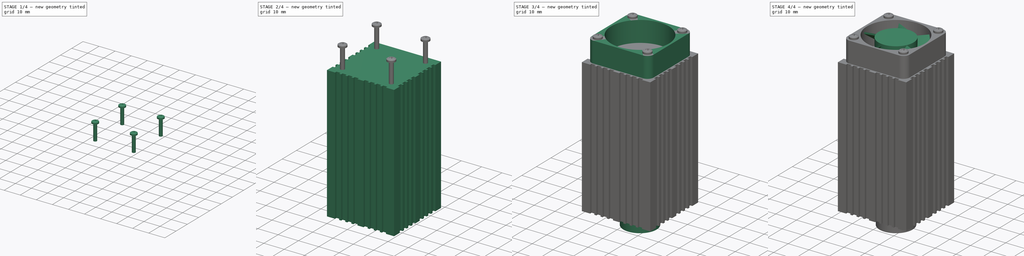
[diagram: build sequence overview — one tinted view per stage of 4, left to right]
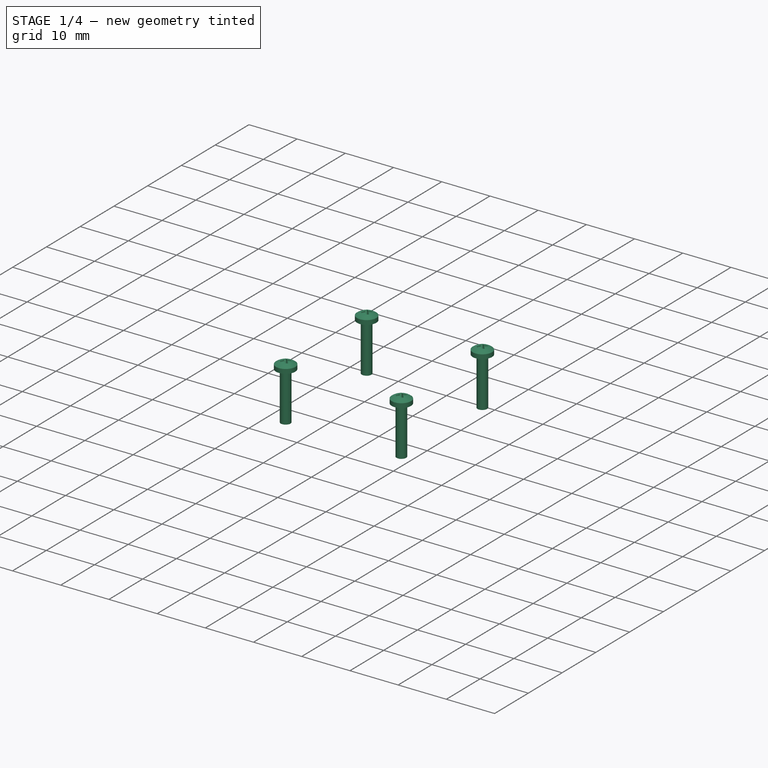
[diagram: stage 1 of 4 — iso view after this stage's code; geometry added in this stage tinted green]
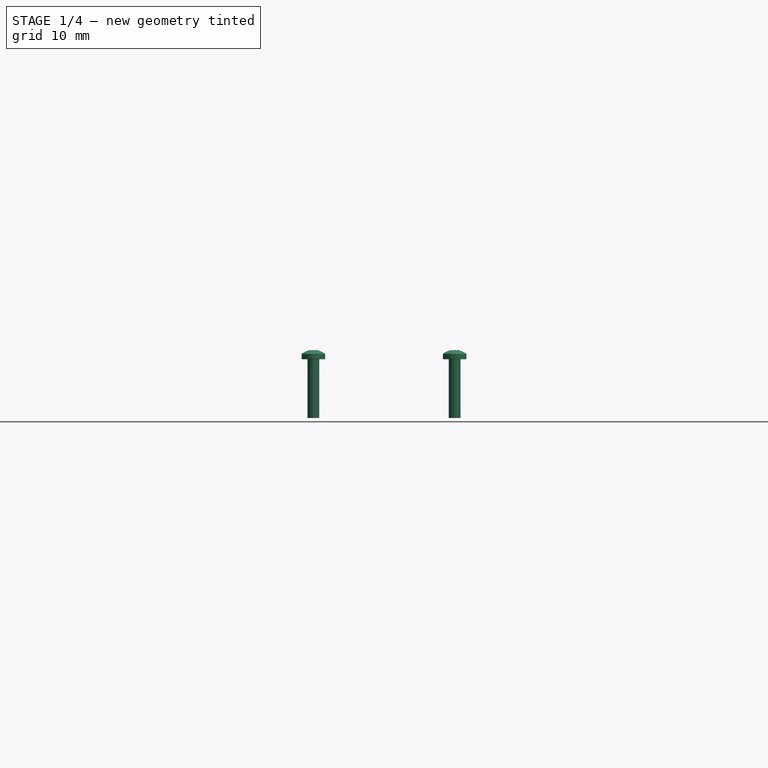
[diagram: stage 1 of 4 — front view after this stage's code; geometry added in this stage tinted green]
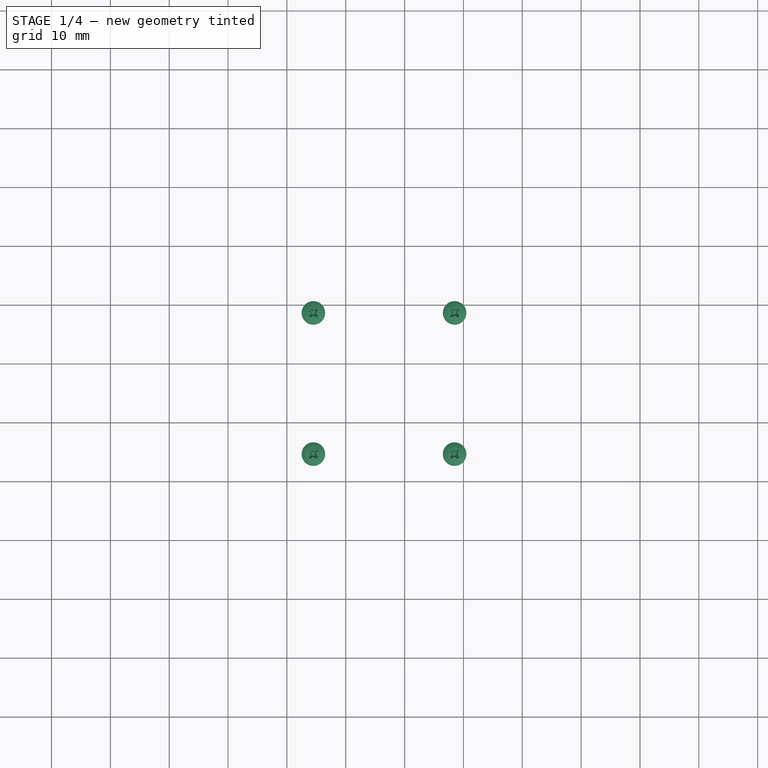
[diagram: stage 1 of 4 — top view after this stage's code; geometry added in this stage tinted green]
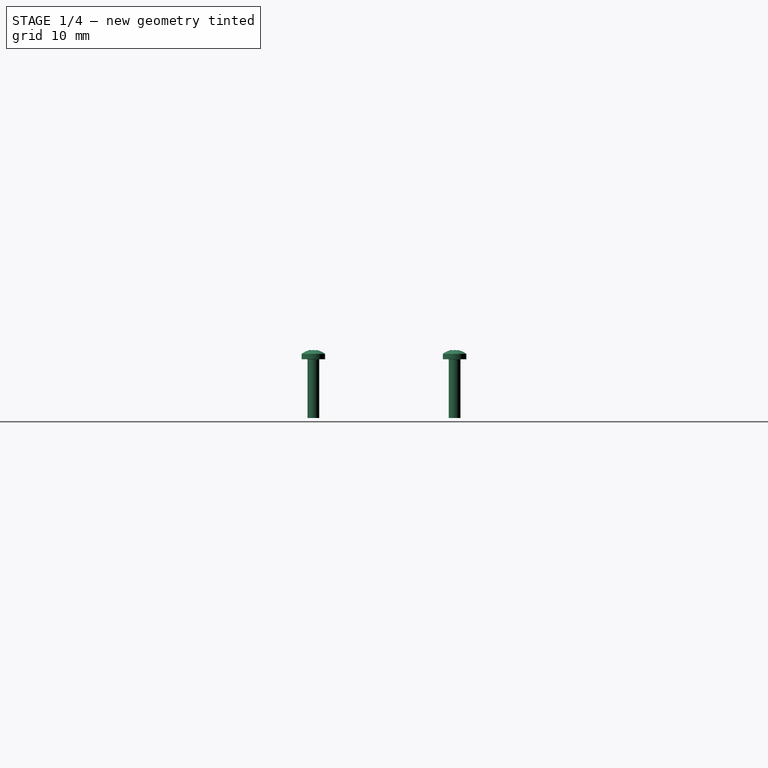
[diagram: stage 1 of 4 — right view after this stage's code; geometry added in this stage tinted green]
FCSTD DOCUMENT  (FreeCAD 0.18R4 (GitTag))
Label: Laser Module 5500mW
License: All rights reserved
LicenseURL: http://en.wikipedia.org/wiki/All_rights_reserved
objects: Sketcher::SketchObject×9, PartDesign::Pad×5, Part::FeaturePython×4, PartDesign::Hole×2, PartDesign::Pocket×1, Part::Helix×1, PartDesign::Plane×1, PartDesign::AdditivePipe×1, PartDesign::Line×1, PartDesign::PolarPattern×1, PartDesign::Body×1
note: 36 computed .brp shape members not serialized (recipe doc carries the construction recipe); baked Part::Feature solids carry a one-line shape summary decoded from their .brp

FEATURE [PartDesign::Body] Body
  Group = -> [Sketch,Pad,Sketch001,Hole,Sketch002,Pad001,Sketch003,Pad002,Sketch004,Pocket,Sketch005,Pad003,Sketch006,Pad004,DatumPlane,Sketch007,AdditivePipe,DatumLine,PolarPattern,Sketch008,Hole001]
  Origin = -> Origin
  Tip = -> Hole001
FEATURE [Part::FeaturePython] Screw  label="M2x10-Screw"  # Fasteners workbench fastener (typed FeaturePython)
  Placement = pos=(4.5,4.5,75) rot=(0,0,1;0rad)
  diameter = 2
  invert = false
  length = 5
  matchOuter = false
  offset = 0
  thread = false
  type = 16
FEATURE [Part::FeaturePython] Screw001  label="M2x10-Screw001"  # Fasteners workbench fastener (typed FeaturePython)
  Placement = pos=(4.5,28.5,75) rot=(0,0,1;0rad)
  diameter = 2
  invert = false
  length = 5
  matchOuter = false
  offset = 0
  thread = false
  type = 16
FEATURE [Part::FeaturePython] Screw002  label="M2x10-Screw002"  # Fasteners workbench fastener (typed FeaturePython)
  Placement = pos=(28.5,4.5,75) rot=(0,0,1;0rad)
  diameter = 2
  invert = false
  length = 5
  matchOuter = false
  offset = 0
  thread = false
  type = 16
FEATURE [Part::FeaturePython] Screw003  label="M2x10-Screw003"  # Fasteners workbench fastener (typed FeaturePython)
  Placement = pos=(28.5,28.5,75) rot=(0,0,1;0rad)
  diameter = 2
  invert = false
  length = 5
  matchOuter = false
  offset = 0
  thread = false
  type = 16
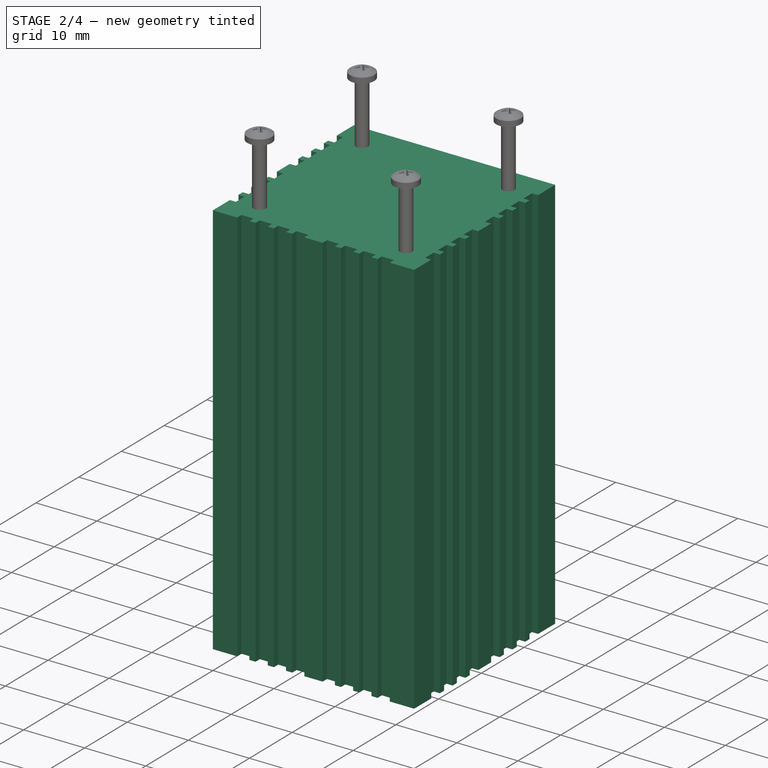
[diagram: stage 2 of 4 — iso view after this stage's code; geometry added in this stage tinted green]
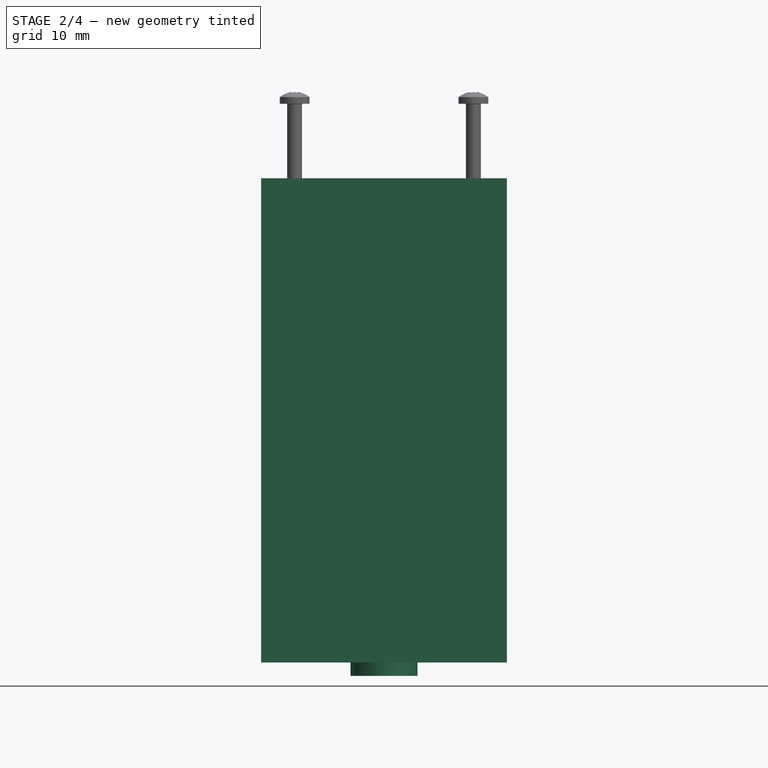
[diagram: stage 2 of 4 — front view after this stage's code; geometry added in this stage tinted green]
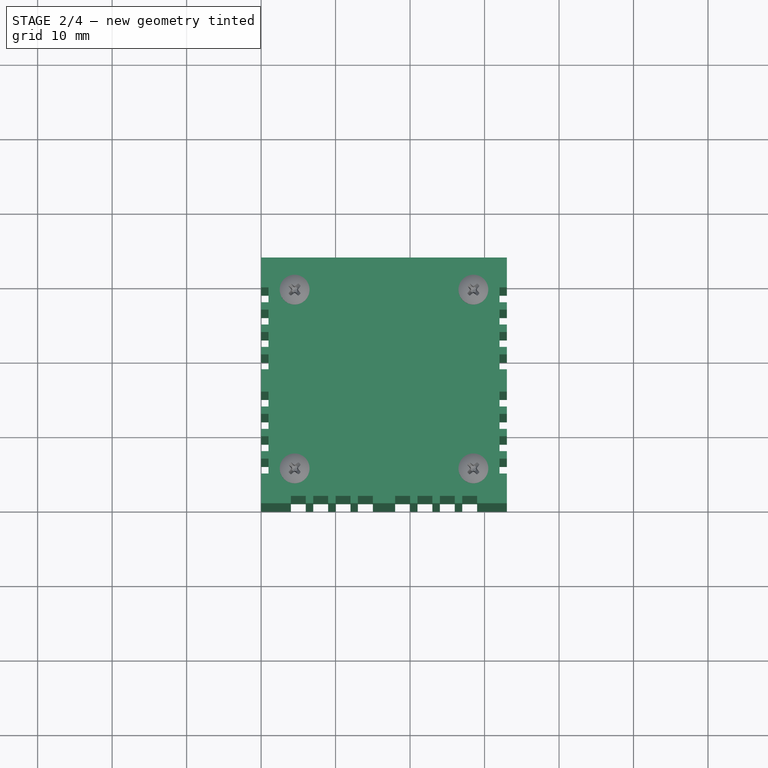
[diagram: stage 2 of 4 — top view after this stage's code; geometry added in this stage tinted green]
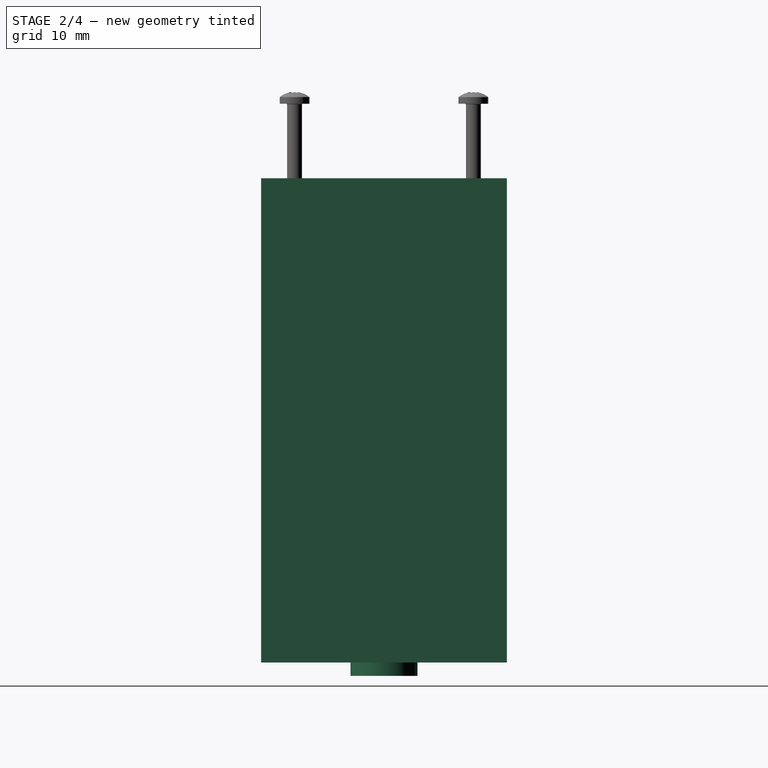
[diagram: stage 2 of 4 — right view after this stage's code; geometry added in this stage tinted green]
FEATURE [Sketcher::SketchObject] Sketch
  MapMode = 5
  Support = -> [XY_Plane]
  sketch-geometry (105):
    g0: LineSegment [constr] StartX=0 StartY=0 StartZ=0 EndX=33 EndY=0 EndZ=0
    g1: LineSegment [constr] StartX=33 StartY=0 StartZ=0 EndX=33 EndY=33 EndZ=0
    g2: LineSegment [constr] StartX=33 StartY=33 StartZ=0 EndX=0 EndY=33 EndZ=0
    g3: LineSegment [constr] StartX=0 StartY=33 StartZ=0 EndX=0 EndY=0 EndZ=0
    g4: LineSegment StartX=0 StartY=33 StartZ=0 EndX=33 EndY=33 EndZ=0
    g5: LineSegment StartX=0 StartY=33 StartZ=0 EndX=0 EndY=29 EndZ=0
    g6: LineSegment StartX=0 StartY=29 StartZ=0 EndX=1 EndY=29 EndZ=0
    g7: LineSegment StartX=1 StartY=29 StartZ=0 EndX=1 EndY=27 EndZ=0
    g8: LineSegment StartX=1 StartY=27 StartZ=0 EndX=0 EndY=27 EndZ=0
    g9: LineSegment StartX=0 StartY=27 StartZ=0 EndX=0 EndY=26 EndZ=0
    g10: LineSegment StartX=0 StartY=26 StartZ=0 EndX=1 EndY=26 EndZ=0
    g11: LineSegment StartX=1 StartY=26 StartZ=0 EndX=1 EndY=24 EndZ=0
    g12: LineSegment StartX=1 StartY=24 StartZ=0 EndX=0 EndY=24 EndZ=0
    g13: LineSegment StartX=0 StartY=24 StartZ=0 EndX=0 EndY=23 EndZ=0
    g14: LineSegment StartX=0 StartY=23 StartZ=0 EndX=1 EndY=23 EndZ=0
    g15: LineSegment StartX=1 StartY=23 StartZ=0 EndX=1 EndY=21 EndZ=0
    g16: LineSegment StartX=1 StartY=21 StartZ=0 EndX=0 EndY=21 EndZ=0
    g17: LineSegment StartX=0 StartY=21 StartZ=0 EndX=0 EndY=20 EndZ=0
    g18: LineSegment StartX=0 StartY=20 StartZ=0 EndX=1 EndY=20 EndZ=0
    g19: LineSegment StartX=1 StartY=20 StartZ=0 EndX=1 EndY=18 EndZ=0
    g20: LineSegment StartX=1 StartY=18 StartZ=0 EndX=0 EndY=18 EndZ=0
    g21: LineSegment StartX=0 StartY=18 StartZ=0 EndX=0 EndY=15 EndZ=0
    g22: LineSegment StartX=0 StartY=15 StartZ=0 EndX=1 EndY=15 EndZ=0
    g23: LineSegment StartX=1 StartY=15 StartZ=0 EndX=1 EndY=13 EndZ=0
    g24: LineSegment StartX=1 StartY=13 StartZ=0 EndX=0 EndY=13 EndZ=0
    g25: LineSegment StartX=0 StartY=13 StartZ=0 EndX=0 EndY=12 EndZ=0
    g26: LineSegment StartX=0 StartY=12 StartZ=0 EndX=1 EndY=12 EndZ=0
    g27: LineSegment StartX=1 StartY=12 StartZ=0 EndX=1 EndY=10 EndZ=0
    g28: LineSegment StartX=1 StartY=10 StartZ=0 EndX=0 EndY=10 EndZ=0
    g29: LineSegment StartX=0 StartY=10 StartZ=0 EndX=0 EndY=9 EndZ=0
    g30: LineSegment StartX=0 StartY=9 StartZ=0 EndX=1 EndY=9 EndZ=0
    g31: LineSegment StartX=1 StartY=9 StartZ=0 EndX=1 EndY=7 EndZ=0
    g32: LineSegment StartX=1 StartY=7 StartZ=0 EndX=0 EndY=7 EndZ=0
    g33: LineSegment StartX=0 StartY=7 StartZ=0 EndX=0 EndY=6 EndZ=0
    g34: LineSegment StartX=0 StartY=6 StartZ=0 EndX=1 EndY=6 EndZ=0
    g35: LineSegment StartX=1 StartY=6 StartZ=0 EndX=1 EndY=4 EndZ=0
    g36: LineSegment StartX=1 StartY=4 StartZ=0 EndX=0 EndY=4 EndZ=0
    g37: LineSegment StartX=0 StartY=4 StartZ=0 EndX=0 EndY=0 EndZ=0
    g38: LineSegment [constr] StartX=16.5 StartY=33 StartZ=0 EndX=16.5 EndY=0 EndZ=0
    g39: LineSegment StartX=33 StartY=29 StartZ=0 EndX=32 EndY=29 EndZ=0
    g40: LineSegment StartX=32 StartY=29 StartZ=0 EndX=32 EndY=27 EndZ=0
    g41: LineSegment StartX=32 StartY=27 StartZ=0 EndX=33 EndY=27 EndZ=0
    g42: LineSegment StartX=33 StartY=27 StartZ=0 EndX=33 EndY=26 EndZ=0
    g43: LineSegment StartX=33 StartY=26 StartZ=0 EndX=32 EndY=26 EndZ=0
    g44: LineSegment StartX=32 StartY=26 StartZ=0 EndX=32 EndY=24 EndZ=0
    g45: LineSegment StartX=32 StartY=24 StartZ=0 EndX=33 EndY=24 EndZ=0
    g46: LineSegment StartX=33 StartY=24 StartZ=0 EndX=33 EndY=23 EndZ=0
    g47: LineSegment StartX=33 StartY=23 StartZ=0 EndX=32 EndY=23 EndZ=0
    g48: LineSegment StartX=32 StartY=23 StartZ=0 EndX=32 EndY=21 EndZ=0
    g49: LineSegment StartX=32 StartY=21 StartZ=0 EndX=33 EndY=21 EndZ=0
    g50: LineSegment StartX=33 StartY=21 StartZ=0 EndX=33 EndY=20 EndZ=0
    g51: LineSegment StartX=33 StartY=20 StartZ=0 EndX=32 EndY=20 EndZ=0
    g52: LineSegment StartX=32 StartY=20 StartZ=0 EndX=32 EndY=18 EndZ=0
    g53: LineSegment StartX=32 StartY=18 StartZ=0 EndX=33 EndY=18 EndZ=0
    g54: LineSegment StartX=33 StartY=18 StartZ=0 EndX=33 EndY=15 EndZ=0
    g55: LineSegment StartX=33 StartY=15 StartZ=0 EndX=32 EndY=15 EndZ=0
    g56: LineSegment StartX=32 StartY=15 StartZ=0 EndX=32 EndY=13 EndZ=0
    g57: LineSegment StartX=32 StartY=13 StartZ=0 EndX=33 EndY=13 EndZ=0
    g58: LineSegment StartX=33 StartY=13 StartZ=0 EndX=33 EndY=12 EndZ=0
    g59: LineSegment StartX=33 StartY=12 StartZ=0 EndX=32 EndY=12 EndZ=0
    g60: LineSegment StartX=32 StartY=12 StartZ=0 EndX=32 EndY=10 EndZ=0
    g61: LineSegment StartX=32 StartY=10 StartZ=0 EndX=33 EndY=10 EndZ=0
    g62: LineSegment StartX=33 StartY=10 StartZ=0 EndX=33 EndY=9 EndZ=0
    g63: LineSegment StartX=33 StartY=9 StartZ=0 EndX=32 EndY=9 EndZ=0
    g64: LineSegment StartX=32 StartY=9 StartZ=0 EndX=32 EndY=7 EndZ=0
    g65: LineSegment StartX=32 StartY=7 StartZ=0 EndX=33 EndY=7 EndZ=0
    g66: LineSegment StartX=33 StartY=7 StartZ=0 EndX=33 EndY=6 EndZ=0
    g67: LineSegment StartX=33 StartY=6 StartZ=0 EndX=32 EndY=6 EndZ=0
    g68: LineSegment StartX=32 StartY=6 StartZ=0 EndX=32 EndY=4 EndZ=0
    g69: LineSegment StartX=32 StartY=4 StartZ=0 EndX=33 EndY=4 EndZ=0
    g70: LineSegment StartX=33 StartY=4 StartZ=0 EndX=33 EndY=0 EndZ=0
    g71: LineSegment StartX=33 StartY=33 StartZ=0 EndX=33 EndY=29 EndZ=0
    g72: LineSegment StartX=0 StartY=0 StartZ=0 EndX=4 EndY=0 EndZ=0
    g73: LineSegment StartX=4 StartY=0 StartZ=0 EndX=4 EndY=1 EndZ=0
    g74: LineSegment StartX=4 StartY=1 StartZ=0 EndX=6 EndY=1 EndZ=0
    g75: LineSegment StartX=6 StartY=1 StartZ=0 EndX=6 EndY=0 EndZ=0
    g76: LineSegment StartX=6 StartY=0 StartZ=0 EndX=7 EndY=0 EndZ=0
    g77: LineSegment StartX=7 StartY=0 StartZ=0 EndX=7 EndY=1 EndZ=0
    g78: LineSegment StartX=7 StartY=1 StartZ=0 EndX=9 EndY=1 EndZ=0
    g79: LineSegment StartX=9 StartY=1 StartZ=0 EndX=9 EndY=0 EndZ=0
    g80: LineSegment StartX=9 StartY=0 StartZ=0 EndX=10 EndY=0 EndZ=0
    g81: LineSegment StartX=10 StartY=0 StartZ=0 EndX=10 EndY=1 EndZ=0
    g82: LineSegment StartX=10 StartY=1 StartZ=0 EndX=12 EndY=1 EndZ=0
    g83: LineSegment StartX=12 StartY=1 StartZ=0 EndX=12 EndY=0 EndZ=0
    g84: LineSegment StartX=12 StartY=0 StartZ=0 EndX=13 EndY=0 EndZ=0
    g85: LineSegment StartX=13 StartY=0 StartZ=0 EndX=13 EndY=1 EndZ=0
    g86: LineSegment StartX=13 StartY=1 StartZ=0 EndX=15 EndY=1 EndZ=0
    g87: LineSegment StartX=15 StartY=1 StartZ=0 EndX=15 EndY=0 EndZ=0
    g88: LineSegment StartX=15 StartY=0 StartZ=0 EndX=18 EndY=0 EndZ=0
    g89: LineSegment StartX=18 StartY=0 StartZ=0 EndX=18 EndY=1 EndZ=0
    g90: LineSegment StartX=18 StartY=1 StartZ=0 EndX=20 EndY=1 EndZ=0
    g91: LineSegment StartX=20 StartY=1 StartZ=0 EndX=20 EndY=0 EndZ=0
    g92: LineSegment StartX=20 StartY=0 StartZ=0 EndX=21 EndY=0 EndZ=0
    g93: LineSegment StartX=21 StartY=0 StartZ=0 EndX=21 EndY=1 EndZ=0
    g94: LineSegment StartX=21 StartY=1 StartZ=0 EndX=23 EndY=1 EndZ=0
    g95: LineSegment StartX=23 StartY=1 StartZ=0 EndX=23 EndY=0 EndZ=0
    g96: LineSegment StartX=23 StartY=0 StartZ=0 EndX=24 EndY=0 EndZ=0
    g97: LineSegment StartX=24 StartY=0 StartZ=0 EndX=24 EndY=1 EndZ=0
    g98: LineSegment StartX=24 StartY=1 StartZ=0 EndX=26 EndY=1 EndZ=0
    g99: LineSegment StartX=26 StartY=1 StartZ=0 EndX=26 EndY=0 EndZ=0
    g100: LineSegment StartX=26 StartY=0 StartZ=0 EndX=27 EndY=0 EndZ=0
    g101: LineSegment StartX=27 StartY=0 StartZ=0 EndX=27 EndY=1 EndZ=0
    g102: LineSegment StartX=27 StartY=1 StartZ=0 EndX=29 EndY=1 EndZ=0
    g103: LineSegment StartX=29 StartY=1 StartZ=0 EndX=29 EndY=0 EndZ=0
    g104: LineSegment StartX=29 StartY=0 StartZ=0 EndX=33 EndY=0 EndZ=0
  constraints (310):
    c: Coincident(g0,g1)
    c: Coincident(g1,g2)
    c: Coincident(g2,g3)
    c: Coincident(g3,g0)
    c: Horizontal(g2)
    c: Vertical(g1)
    c: Vertical(g3)
    c: Coincident(g0,g-1)
    c: Equal(g3,g0)
    c: Distance(g1) = 33
    c: Coincident(g4,g2)
    c: Coincident(g4,g1)
    c: Coincident(g4,g5)
    c: PointOnObject(g5,g3)
    c: Coincident(g5,g6)
    c: Horizontal(g6)
    c: Coincident(g6,g7)
    c: Vertical(g7)
    c: Coincident(g7,g8)
    c: PointOnObject(g8,g3)
    c: Horizontal(g8)
    c: Coincident(g8,g9)
    c: PointOnObject(g9,g3)
    c: Coincident(g9,g10)
    c: Coincident(g10,g11)
    c: Vertical(g11)
    c: Coincident(g11,g12)
    c: PointOnObject(g12,g3)
    c: Coincident(g12,g13)
    c: PointOnObject(g13,g3)
    c: Coincident(g13,g14)
    c: Horizontal(g14)
    c: Coincident(g14,g15)
    c: Vertical(g15)
    c: Coincident(g15,g16)
    c: PointOnObject(g16,g3)
    c: Coincident(g16,g17)
    c: PointOnObject(g17,g3)
    c: Coincident(g17,g18)
    c: Horizontal(g18)
    c: Coincident(g18,g19)
    c: Vertical(g19)
    c: Coincident(g19,g20)
    c: PointOnObject(g20,g3)
    c: Horizontal(g20)
    c: Coincident(g20,g21)
    c: PointOnObject(g21,g3)
    c: Coincident(g21,g22)
    c: Horizontal(g22)
    c: Coincident(g22,g23)
    c: Vertical(g23)
    c: Coincident(g23,g24)
    c: PointOnObject(g24,g3)
    c: Horizontal(g24)
    c: Coincident(g24,g25)
    c: PointOnObject(g25,g3)
    c: Coincident(g25,g26)
    c: Horizontal(g26)
    c: Coincident(g26,g27)
    c: Coincident(g27,g28)
    c: PointOnObject(g28,g3)
    c: Horizontal(g28)
    c: Coincident(g28,g29)
    c: PointOnObject(g29,g3)
    c: Coincident(g29,g30)
    c: Horizontal(g30)
    c: Coincident(g30,g31)
    c: Vertical(g31)
    c: Coincident(g31,g32)
    c: PointOnObject(g32,g3)
    c: Horizontal(g32)
    c: Coincident(g32,g33)
    c: PointOnObject(g33,g3)
    c: Coincident(g33,g34)
    c: Horizontal(g34)
    c: Coincident(g34,g35)
    c: Vertical(g35)
    c: Coincident(g35,g36)
    c: PointOnObject(g36,g3)
    c: Coincident(g36,g37)
    c: Coincident(g37,g-1)
    c: Horizontal(g36)
    c: Horizontal(g10)
    c: Horizontal(g12)
    c: Horizontal(g16)
    c: Equal(g7,g11)
    c: Equal(g11,g15)
    c: Equal(g15,g19)
    c: Equal(g19,g23)
    c: Equal(g23,g27)
    c: Equal(g27,g31)
    c: Equal(g31,g35)
    c: Vertical(g7,g11)
    c: Vertical(g11,g15)
    c: Vertical(g15,g19)
    c: Vertical(g19,g23)
    c: Vertical(g23,g27)
    c: Vertical(g27,g31)
    c: Vertical(g31,g35)
    c: Equal(g9,g13)
    c: Equal(g13,g17)
    c: Equal(g17,g33)
    c: Equal(g33,g29)
    c: Equal(g29,g25)
    c: Vertical(g27)
    c: Equal(g5,g37)
    c: Distance(g5) = 4
    c: Distance(g21) = 3
    c: Distance(g13) = 1
    c: Distance(g36) = 1
    c: PointOnObject(g38,g4)
    c: PointOnObject(g38,g0)
    c: Symmetric(g37,g0,g38)
    c: Coincident(g71,g39)
    c: Horizontal(g39)
    c: Coincident(g39,g40)
    c: Vertical(g40)
    c: Coincident(g40,g41)
    c: Horizontal(g41)
    c: Coincident(g41,g42)
    c: Coincident(g42,g43)
    c: Coincident(g43,g44)
    c: Vertical(g44)
    c: Coincident(g44,g45)
    c: Coincident(g45,g46)
    c: Coincident(g46,g47)
    c: Horizontal(g47)
    c: Coincident(g47,g48)
    c: Vertical(g48)
    c: Coincident(g48,g49)
    c: Coincident(g49,g50)
    c: Coincident(g50,g51)
    c: Horizontal(g51)
    c: Coincident(g51,g52)
    c: Vertical(g52)
    c: Coincident(g52,g53)
    c: Horizontal(g53)
    c: Coincident(g53,g54)
    c: Coincident(g54,g55)
    c: Horizontal(g55)
    c: Coincident(g55,g56)
    c: Vertical(g56)
    c: Coincident(g56,g57)
    c: Horizontal(g57)
    c: Coincident(g57,g58)
    c: Coincident(g58,g59)
    c: Horizontal(g59)
    c: Coincident(g59,g60)
    c: Coincident(g60,g61)
    c: Horizontal(g61)
    c: Coincident(g61,g62)
    c: Coincident(g62,g63)
    c: Horizontal(g63)
    c: Coincident(g63,g64)
    c: Vertical(g64)
    c: Coincident(g64,g65)
    c: Horizontal(g65)
    c: Coincident(g65,g66)
    c: Coincident(g66,g67)
    c: Horizontal(g67)
    c: Coincident(g67,g68)
    c: Vertical(g68)
    c: Coincident(g68,g69)
    c: Coincident(g69,g70)
    c: Horizontal(g69)
    c: Horizontal(g43)
    c: Horizontal(g45)
    c: Horizontal(g49)
    c: Equal(g40,g44)
    c: Equal(g44,g48)
    c: Equal(g48,g52)
    c: Equal(g52,g56)
    c: Equal(g56,g60)
    c: Equal(g60,g64)
    c: Equal(g64,g68)
    c: Equal(g42,g46)
    c: Equal(g46,g50)
    c: Equal(g50,g66)
    c: Equal(g66,g62)
    c: Equal(g62,g58)
    c: Vertical(g60)
    c: Equal(g71,g70)
    c: Distance(g71) = 4
    c: Distance(g54) = 3
    c: Distance(g46) = 1
    c: Distance(g69) = 1
    c: Vertical(g39,g43)
    c: Vertical(g43,g48)
    c: Vertical(g48,g52)
    c: Vertical(g52,g55)
    c: Vertical(g55,g59)
    c: Vertical(g59,g63)
    c: Vertical(g63,g67)
    c: PointOnObject(g69,g1)
    c: PointOnObject(g39,g1)
    c: PointOnObject(g41,g1)
    c: PointOnObject(g42,g1)
    c: PointOnObject(g49,g1)
    c: PointOnObject(g50,g1)
    c: PointOnObject(g45,g1)
    c: PointOnObject(g46,g1)
    c: Coincident(g71,g4)
    c: Coincident(g70,g0)
    c: PointOnObject(g66,g1)
    c: PointOnObject(g65,g1)
    c: PointOnObject(g62,g1)
    c: PointOnObject(g61,g1)
    c: PointOnObject(g57,g1)
    c: PointOnObject(g58,g1)
    c: PointOnObject(g53,g1)
    c: PointOnObject(g54,g1)
    c: Coincident(g37,g72)
    c: PointOnObject(g72,g0)
    c: Horizontal(g72)
    c: Coincident(g72,g73)
    c: Vertical(g73)
    c: Coincident(g73,g74)
    c: Horizontal(g74)
    c: Coincident(g74,g75)
    c: PointOnObject(g75,g0)
    c: Vertical(g75)
    c: Coincident(g75,g76)
    c: PointOnObject(g76,g0)
    c: Coincident(g76,g77)
    c: Vertical(g77)
    c: Coincident(g77,g78)
    c: Horizontal(g78)
    c: Coincident(g78,g79)
    c: PointOnObject(g79,g0)
    c: Vertical(g79)
    c: Coincident(g79,g80)
    c: PointOnObject(g80,g0)
    c: Coincident(g80,g81)
    c: Vertical(g81)
    c: Coincident(g81,g82)
    c: Horizontal(g82)
    c: Coincident(g82,g83)
    c: PointOnObject(g83,g0)
    c: Vertical(g83)
    c: Coincident(g83,g84)
    c: PointOnObject(g84,g0)
    c: Coincident(g84,g85)
    c: Coincident(g85,g86)
    c: Horizontal(g86)
    c: Coincident(g86,g87)
    c: PointOnObject(g87,g0)
    c: Vertical(g87)
    c: Coincident(g87,g88)
    c: PointOnObject(g88,g0)
    c: Coincident(g88,g89)
    c: Vertical(g89)
    c: Coincident(g89,g90)
    c: Horizontal(g90)
    c: Coincident(g90,g91)
    c: PointOnObject(g91,g0)
    c: Coincident(g91,g92)
    c: PointOnObject(g92,g0)
    c: Coincident(g92,g93)
    c: Coincident(g93,g94)
    c: Horizontal(g94)
    c: Coincident(g94,g95)
    c: PointOnObject(g95,g0)
    c: Vertical(g95)
    c: Coincident(g95,g96)
    c: PointOnObject(g96,g0)
    c: Coincident(g96,g97)
    c: Coincident(g97,g98)
    c: Horizontal(g98)
    c: Coincident(g98,g99)
    c: PointOnObject(g99,g0)
    c: Vertical(g99)
    c: Coincident(g99,g100)
    c: PointOnObject(g100,g0)
    c: Coincident(g100,g101)
    c: Vertical(g101)
    c: Coincident(g101,g102)
    c: Horizontal(g102)
    c: Coincident(g102,g103)
    c: PointOnObject(g103,g0)
    c: Vertical(g103)
    c: Coincident(g103,g104)
    c: Coincident(g104,g70)
    c: Vertical(g85)
    c: Vertical(g91)
    c: Vertical(g93)
    c: Equal(g36,g73)
    c: Equal(g73,g77)
    c: Equal(g77,g81)
    c: Equal(g81,g85)
    c: Equal(g85,g89)
    c: Equal(g89,g93)
    c: Equal(g93,g97)
    c: Equal(g97,g101)
    c: Equal(g33,g76)
    c: Equal(g76,g80)
    c: Equal(g80,g84)
    c: Equal(g84,g92)
    c: Equal(g92,g96)
    c: Equal(g96,g100)
    c: Equal(g21,g88)
    c: Equal(g35,g74)
    c: Equal(g74,g78)
    c: Equal(g78,g82)
    c: Equal(g82,g86)
    c: Equal(g86,g90)
    c: Equal(g90,g94)
    c: Equal(g94,g98)
    c: Equal(g98,g102)
    c: Equal(g37,g72)
    c: Equal(g72,g104)
FEATURE [PartDesign::Pad] Pad
  Length = 65
  Length2 = 100
  Profile = -> Sketch
  Type = 0
FEATURE [Sketcher::SketchObject] Sketch001
  ExternalGeometry = -> [Pad]
  MapMode = 5
  Placement = pos=(0,33,0) rot=(0,0.707107,0.707107;3.14159rad)
  Support = -> [Pad]
  sketch-geometry (5):
    g0: Circle CenterX=-16.5 CenterY=49.6 CenterZ=0 NormalX=0 NormalY=0 NormalZ=1 AngleXU=0 Radius=1.5
    g1: Circle CenterX=-16.5 CenterY=42.1 CenterZ=0 NormalX=0 NormalY=0 NormalZ=1 AngleXU=0 Radius=1.5
    g2: Circle CenterX=-16.5 CenterY=22.1 CenterZ=0 NormalX=0 NormalY=0 NormalZ=1 AngleXU=0 Radius=1.5
    g3: Circle CenterX=-16.5 CenterY=9.6 CenterZ=0 NormalX=0 NormalY=0 NormalZ=1 AngleXU=0 Radius=1.5
    g4: GeomPoint X=-16.5 Y=0 Z=0
  constraints (13):
    c: Vertical(g3,g2)
    c: Vertical(g2,g1)
    c: Vertical(g1,g0)
    c: Equal(g0,g1)
    c: Equal(g1,g2)
    c: Equal(g2,g3)
    c: Vertical(g4,g3)
    c: Symmetric(g-3,g-1,g4)
    c: Diameter(g0) = 3
    c: Distance(g0,g3) = 40
    c: Distance(g4,g3) = 9.6
    c: Distance(g1,g2) = 20
    c: Distance(g0,g1) = 7.5
FEATURE [PartDesign::Hole] Hole
  BaseFeature = -> Pad
  Depth = 7
  DepthType = 0
  Diameter = 2.5
  DrillPoint = 1
  DrillPointAngle = 118
  HoleCutCountersinkAngle = 90
  HoleCutDepth = 0
  HoleCutDiameter = 3
  HoleCutType = 0
  ModelActualThread = false
  Profile = -> Sketch001
  Tapered = false
  TaperedAngle = 90
  ThreadAngle = 60
  ThreadClass = 0
  ThreadCutOffInner = 0.0541266
  ThreadCutOffOuter = 0.108253
  ThreadDirection = 1
  ThreadFit = 0
  ThreadPitch = 0.5
  ThreadSize = 3
  ThreadType = 1
  Threaded = true
FEATURE [Sketcher::SketchObject] Sketch002
  ExternalGeometry = -> [Hole]
  MapMode = 5
  Placement = pos=(0,0,0) rot=(1,0,0;3.14159rad)
  Support = -> [Hole]
  sketch-geometry (3):
    g0: GeomPoint X=0 Y=-16.5 Z=0
    g1: GeomPoint X=16.5 Y=-33 Z=0
    g2: Circle CenterX=16.5 CenterY=-16.5 CenterZ=0 NormalX=0 NormalY=0 NormalZ=1 AngleXU=0 Radius=4.5
  constraints (5):
    c: Symmetric(g-1,g-3,g0)
    c: Symmetric(g-3,g-3,g1)
    c: Vertical(g1,g2)
    c: Horizontal(g0,g2)
    c: Diameter(g2) = 9
FEATURE [PartDesign::Pad] Pad001
  BaseFeature = -> Hole
  Length = 1.8
  Length2 = 100
  Profile = -> Sketch002
  Type = 0
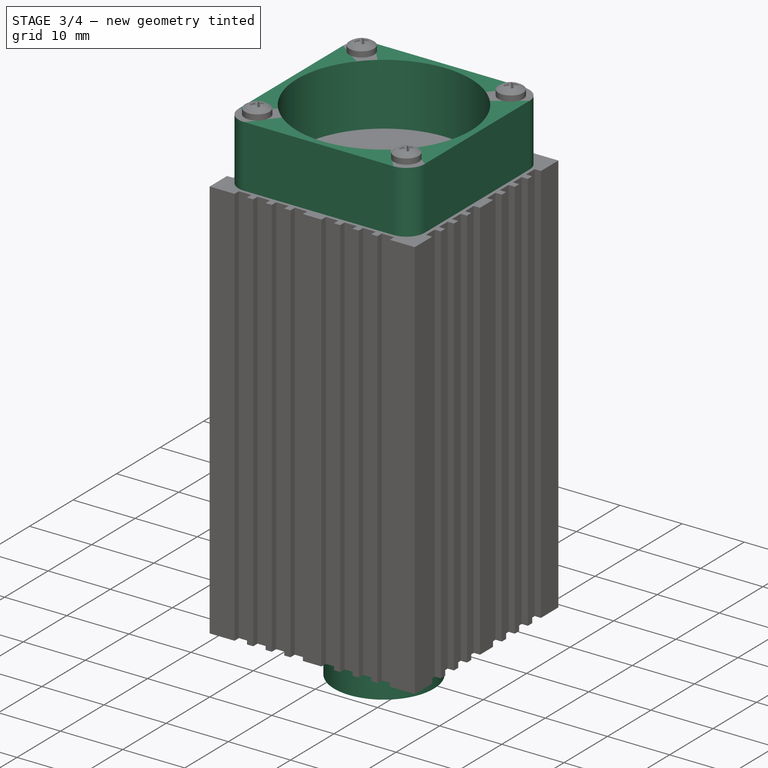
[diagram: stage 3 of 4 — iso view after this stage's code; geometry added in this stage tinted green]
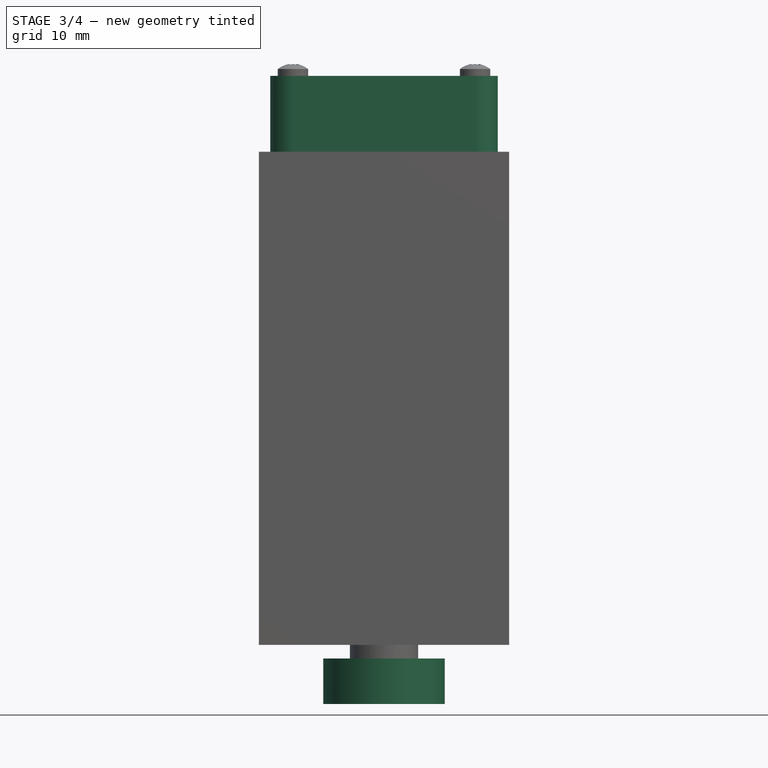
[diagram: stage 3 of 4 — front view after this stage's code; geometry added in this stage tinted green]
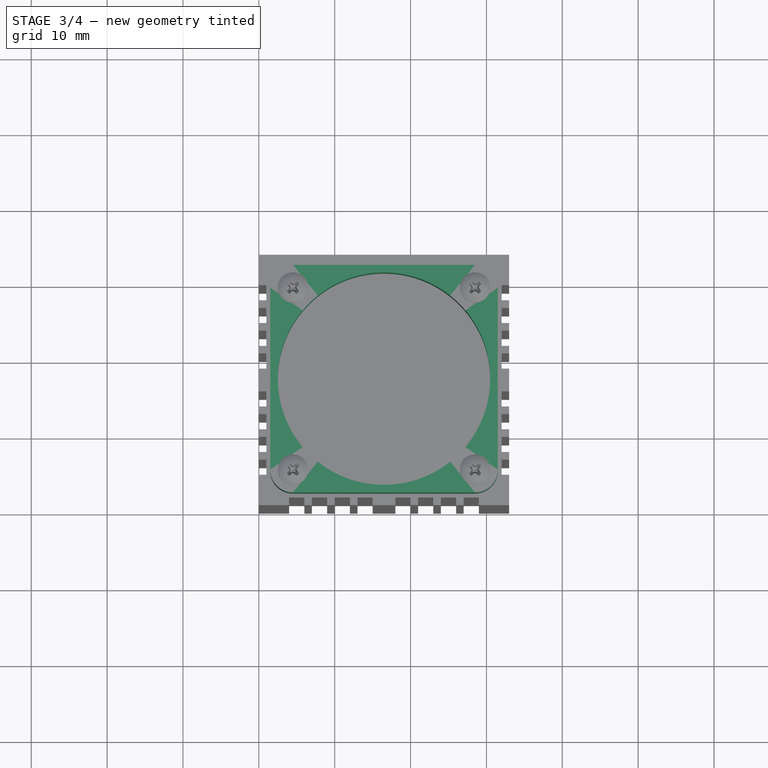
[diagram: stage 3 of 4 — top view after this stage's code; geometry added in this stage tinted green]
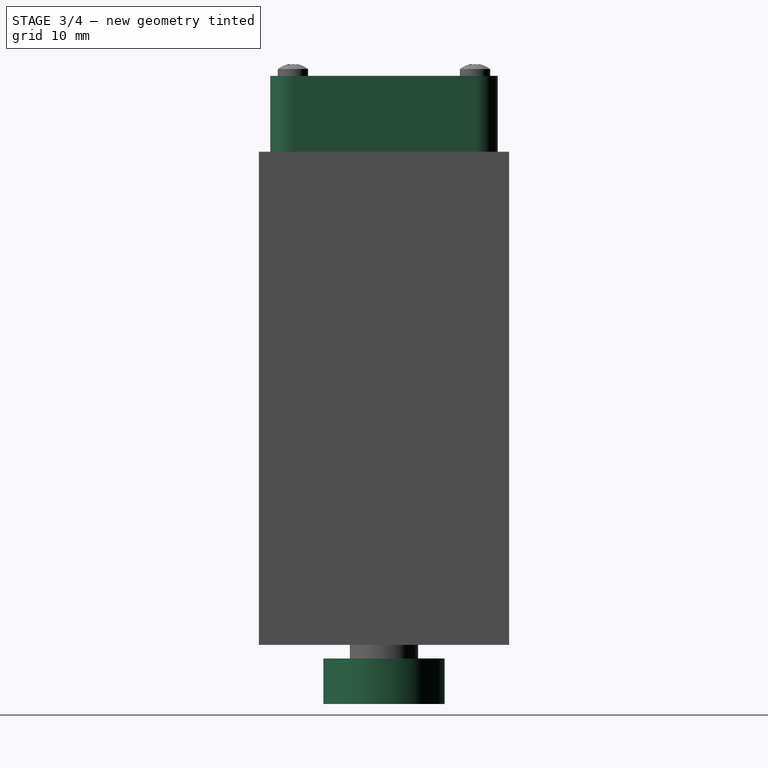
[diagram: stage 3 of 4 — right view after this stage's code; geometry added in this stage tinted green]
FEATURE [Sketcher::SketchObject] Sketch003
  ExternalGeometry = -> [Pad001]
  MapMode = 5
  Placement = pos=(0,0,-1.8) rot=(1,0,0;3.14159rad)
  Support = -> [Pad001]
  sketch-geometry (1):
    g0: Circle CenterX=16.5 CenterY=-16.5 CenterZ=0 NormalX=0 NormalY=0 NormalZ=1 AngleXU=0 Radius=8
  constraints (2):
    c: Coincident(g0,g-3)
    c: Diameter(g0) = 16
FEATURE [PartDesign::Pad] Pad002
  BaseFeature = -> Pad001
  Length = 6
  Length2 = 100
  Profile = -> Sketch003
  Type = 0
FEATURE [Sketcher::SketchObject] Sketch004
  ExternalGeometry = -> [Pad002]
  MapMode = 5
  Placement = pos=(0,0,-7.8) rot=(1,0,0;3.14159rad)
  Support = -> [Pad002]
  sketch-geometry (1):
    g0: Circle CenterX=16.5 CenterY=-16.5 CenterZ=0 NormalX=0 NormalY=0 NormalZ=1 AngleXU=0 Radius=2.5
  constraints (2):
    c: Coincident(g0,g-3)
    c: Diameter(g0) = 5
FEATURE [PartDesign::Pocket] Pocket
  BaseFeature = -> Pad002
  Length = 20
  Length2 = 100
  Profile = -> Sketch004
  Type = 0
FEATURE [Sketcher::SketchObject] Sketch005
  ExternalGeometry = -> [Pocket]
  MapMode = 5
  Placement = pos=(0,0,65) rot=(0,0,1;0rad)
  Support = -> [Pocket]
  sketch-geometry (11):
    g0: LineSegment StartX=4.5 StartY=31.5 StartZ=0 EndX=28.5 EndY=31.5 EndZ=0
    g1: LineSegment StartX=31.5 StartY=28.5 StartZ=0 EndX=31.5 EndY=4.5 EndZ=0
    g2: LineSegment StartX=28.5 StartY=1.5 StartZ=0 EndX=4.5 EndY=1.5 EndZ=0
    g3: LineSegment StartX=1.5 StartY=4.5 StartZ=0 EndX=1.5 EndY=28.5 EndZ=0
    g4: LineSegment [constr] StartX=0 StartY=0 StartZ=0 EndX=33 EndY=33 EndZ=0
    g5: LineSegment [constr] StartX=0 StartY=33 StartZ=0 EndX=16.5 EndY=16.5 EndZ=0
    g6: ArcOfCircle CenterX=4.5 CenterY=28.5 CenterZ=0 NormalX=0 NormalY=0 NormalZ=1 AngleXU=0 Radius=3 StartAngle=1.5708 EndAngle=3.14159
    g7: ArcOfCircle CenterX=28.5 CenterY=28.5 CenterZ=0 NormalX=0 NormalY=0 NormalZ=1 AngleXU=0 Radius=3 StartAngle=0 EndAngle=1.5708
    g8: ArcOfCircle CenterX=4.5 CenterY=4.5 CenterZ=0 NormalX=0 NormalY=0 NormalZ=1 AngleXU=0 Radius=3 StartAngle=3.14159 EndAngle=4.71239
    g9: ArcOfCircle CenterX=28.5 CenterY=4.5 CenterZ=0 NormalX=0 NormalY=0 NormalZ=1 AngleXU=0 Radius=3 StartAngle=4.71239 EndAngle=6.28319
    g10: Circle CenterX=16.5 CenterY=16.5 CenterZ=0 NormalX=0 NormalY=0 NormalZ=1 AngleXU=0 Radius=14
  constraints (27):
    c: Horizontal(g0)
    c: Horizontal(g2)
    c: Vertical(g1)
    c: Vertical(g3)
    c: Coincident(g4,g-1)
    c: Coincident(g4,g-3)
    c: Equal(g3,g0)
    c: Coincident(g5,g-3)
    c: PointOnObject(g5,g4)
    c: Perpendicular(g4,g5)
    c: Tangent(g0,g6) = 1.5708
    c: Tangent(g3,g6) = 1.5708
    c: Tangent(g0,g7) = 1.5708
    c: Tangent(g1,g7) = 1.5708
    c: Tangent(g2,g8) = 1.5708
    c: Tangent(g3,g8) = 1.5708
    c: Tangent(g1,g9) = 1.5708
    c: Tangent(g2,g9) = 1.5708
    c: PointOnObject(g6,g5)
    c: PointOnObject(g8,g4)
    c: Equal(g2,g3)
    c: Equal(g6,g8)
    c: Equal(g8,g9)
    c: Distance(g0,g2) = 30
    c: Radius(g9) = 3
    c: Coincident(g10,g5)
    c: Diameter(g10) = 28
FEATURE [PartDesign::Pad] Pad003
  BaseFeature = -> Pocket
  Length = 10
  Length2 = 100
  Profile = -> Sketch005
  Type = 0
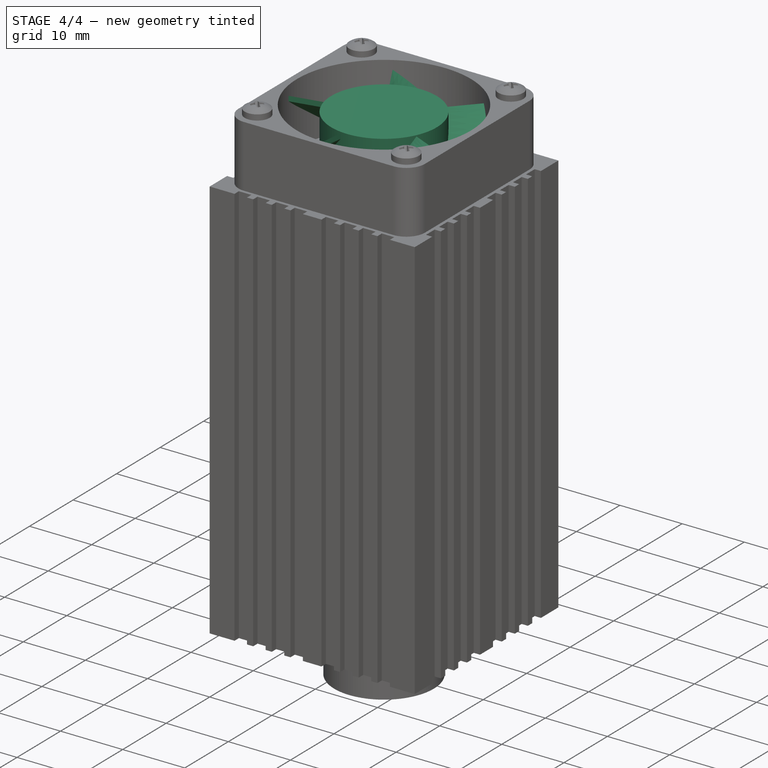
[diagram: stage 4 of 4 — iso view after this stage's code; geometry added in this stage tinted green]
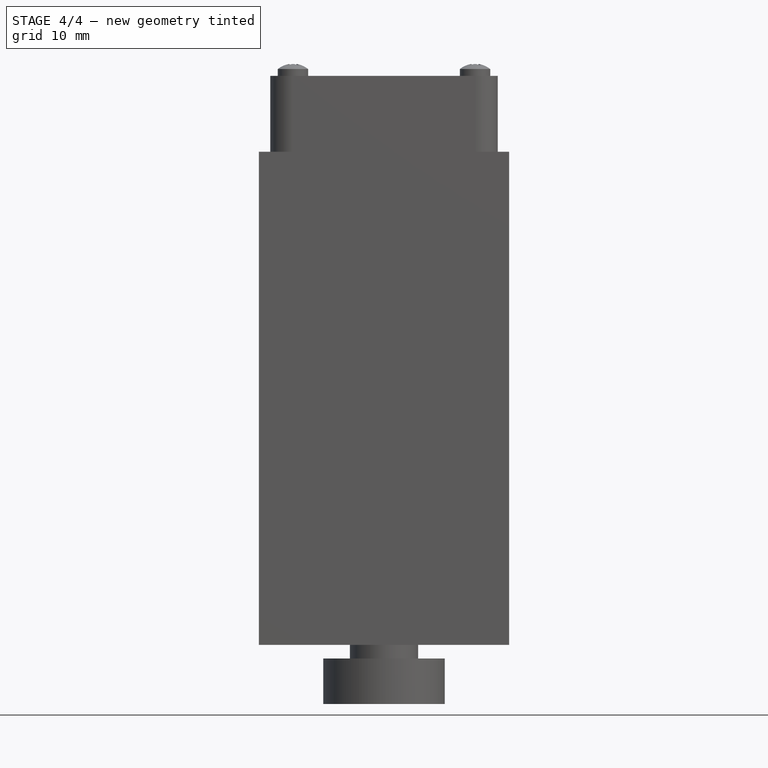
[diagram: stage 4 of 4 — front view after this stage's code; geometry added in this stage tinted green]
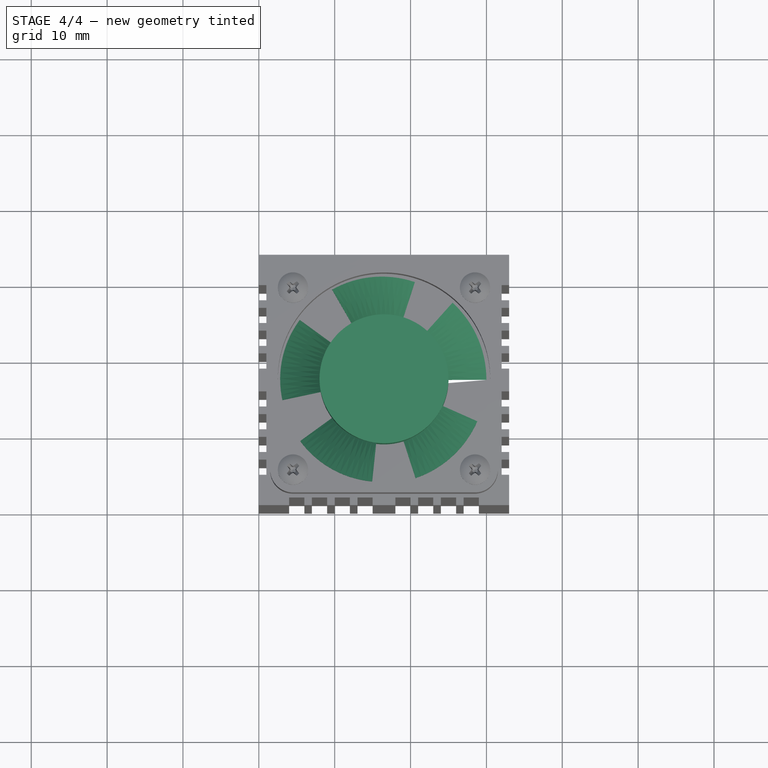
[diagram: stage 4 of 4 — top view after this stage's code; geometry added in this stage tinted green]
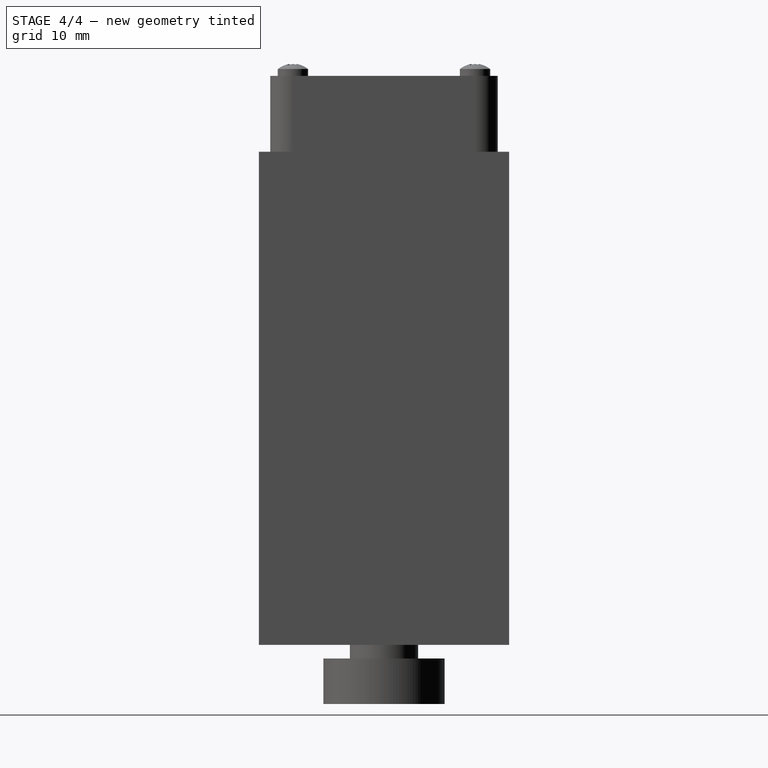
[diagram: stage 4 of 4 — right view after this stage's code; geometry added in this stage tinted green]
FEATURE [Sketcher::SketchObject] Sketch006
  ExternalGeometry = -> [Pad003]
  MapMode = 5
  Placement = pos=(0,0,65) rot=(0,0,1;0rad)
  Support = -> [Pad003]
  sketch-geometry (1):
    g0: Circle CenterX=16.5 CenterY=16.5 CenterZ=0 NormalX=0 NormalY=0 NormalZ=1 AngleXU=0 Radius=8.5
  constraints (2):
    c: Coincident(g0,g-3)
    c: Diameter(g0) = 17
FEATURE [PartDesign::Pad] Pad004
  BaseFeature = -> Pad003
  Length = 9
  Length2 = 100
  Profile = -> Sketch006
  Type = 0
FEATURE [Part::Helix] Helix003  label="Helix"
  Angle = 0
  AttacherType = Attacher::AttachEngine3D
  Height = 8
  LocalCoord = 0
  Pitch = 60
  Placement = pos=(16.5,16.5,65) rot=(0,0,1;0rad)
  Radius = 8.5
  Style = 1
FEATURE [PartDesign::Plane] DatumPlane
  Length = 55.0913
  MapMode = 6
  Placement = pos=(25,16.5,65) rot=(0,0.707107,0.707107;3.14159rad)
  ResizeMode = 0
  Support = -> [Pad004]
  Width = 97.0913
FEATURE [Sketcher::SketchObject] Sketch007
  MapMode = 5
  Placement = pos=(25,16.5,65) rot=(0,0.707107,0.707107;3.14159rad)
  Support = -> [DatumPlane]
  sketch-geometry (4):
    g0: LineSegment StartX=-5 StartY=0.8 StartZ=0 EndX=1 EndY=0.8 EndZ=0
    g1: LineSegment StartX=1 StartY=0.8 StartZ=0 EndX=1 EndY=0 EndZ=0
    g2: LineSegment StartX=1 StartY=0 StartZ=0 EndX=-5 EndY=0 EndZ=0
    g3: LineSegment StartX=-5 StartY=0 StartZ=0 EndX=-5 EndY=0.8 EndZ=0
  constraints (12):
    c: Coincident(g0,g1)
    c: Coincident(g1,g2)
    c: Coincident(g2,g3)
    c: Coincident(g3,g0)
    c: Horizontal(g0)
    c: Horizontal(g2)
    c: Vertical(g1)
    c: Vertical(g3)
    c: PointOnObject(g1,g-1)
    c: Distance(g3) = 0.8
    c: Distance(g-1,g3) = 5
    c: Distance(g-1,g1) = 1
FEATURE [PartDesign::AdditivePipe] AdditivePipe
  AuxilleryCurvelinear = true
  AuxillerySpineTangent = false
  BaseFeature = -> Pad004
  Binormal = (0,0,0)
  Mode = 2
  Profile = -> Sketch007
  Spine = -> Helix003
  SpineTangent = false
  Transformation = 0
  Transition = 0
FEATURE [PartDesign::Line] DatumLine
  AttacherType = Attacher::AttachEngineLine
  MapMode = 42
  Placement = pos=(16.4847,16.3501,-0.00797464) rot=(-0.000296,0.000956,0.999999;3.74232rad)
  Support = -> [AdditivePipe]
FEATURE [PartDesign::PolarPattern] PolarPattern
  Angle = 360
  Axis = -> DatumLine
  BaseFeature = -> AdditivePipe
  Occurrences = 5
  Originals = -> [AdditivePipe]
FEATURE [Sketcher::SketchObject] Sketch008
  ExternalGeometry = -> [PolarPattern]
  MapMode = 5
  Placement = pos=(0,0,75) rot=(0,0,1;0rad)
  Support = -> [PolarPattern]
  sketch-geometry (4):
    g0: Circle CenterX=4.5 CenterY=28.5 CenterZ=0 NormalX=0 NormalY=0 NormalZ=1 AngleXU=0 Radius=1
    g1: Circle CenterX=28.5 CenterY=28.5 CenterZ=0 NormalX=0 NormalY=0 NormalZ=1 AngleXU=0 Radius=1
    g2: Circle CenterX=28.5 CenterY=4.5 CenterZ=0 NormalX=0 NormalY=0 NormalZ=1 AngleXU=0 Radius=1
    g3: Circle CenterX=4.5 CenterY=4.5 CenterZ=0 NormalX=0 NormalY=0 NormalZ=1 AngleXU=0 Radius=1
  constraints (8):
    c: Coincident(g0,g-3)
    c: Coincident(g1,g-4)
    c: Coincident(g2,g-5)
    c: Coincident(g3,g-6)
    c: Equal(g3,g2)
    c: Equal(g2,g1)
    c: Equal(g1,g0)
    c: Diameter(g3) = 2
FEATURE [PartDesign::Hole] Hole001
  BaseFeature = -> PolarPattern
  Depth = 10
  DepthType = 0
  Diameter = 2.2
  DrillPoint = 1
  DrillPointAngle = 118
  HoleCutCountersinkAngle = 90
  HoleCutDepth = 0
  HoleCutDiameter = 2
  HoleCutType = 0
  ModelActualThread = false
  Profile = -> Sketch008
  Tapered = false
  TaperedAngle = 90
  ThreadAngle = 0
  ThreadClass = 0
  ThreadCutOffInner = 0
  ThreadCutOffOuter = 0
  ThreadDirection = 0
  ThreadFit = 0
  ThreadPitch = 0
  ThreadSize = 1
  ThreadType = 1
  Threaded = false
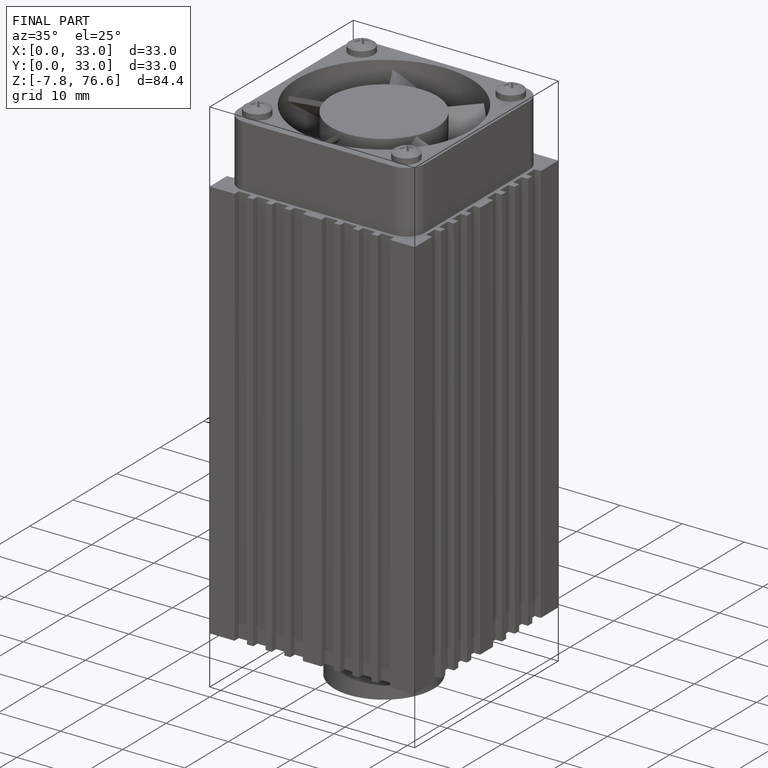
[diagram: finished part — iso view with bounding-box wireframe]
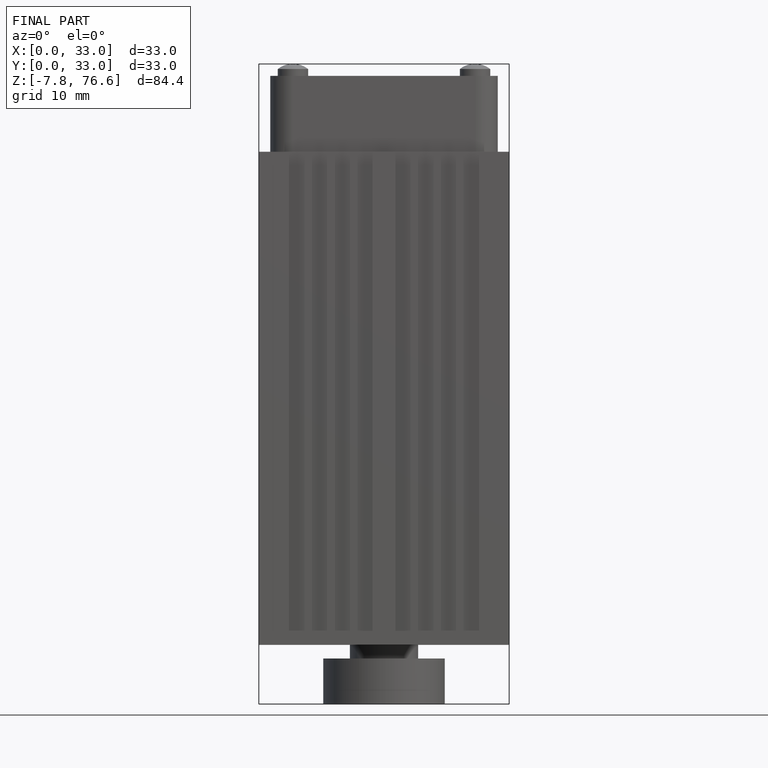
[diagram: finished part — front view with bounding-box wireframe]
